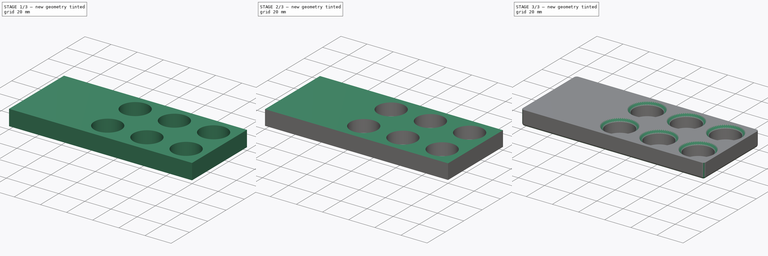
[diagram: build sequence overview — one tinted view per stage of 3, left to right]
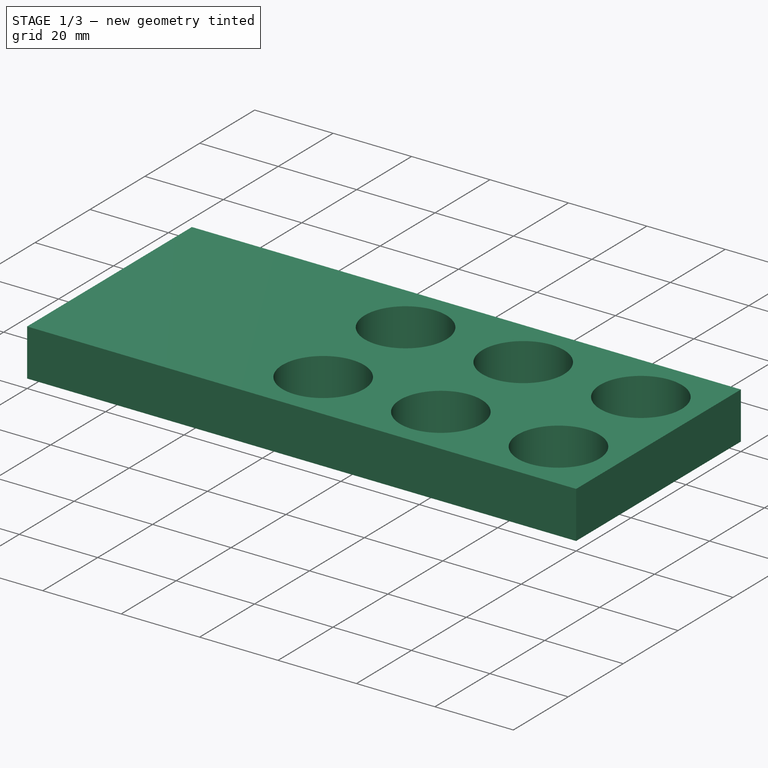
[diagram: stage 1 of 3 — iso view after this stage's code; geometry added in this stage tinted green]
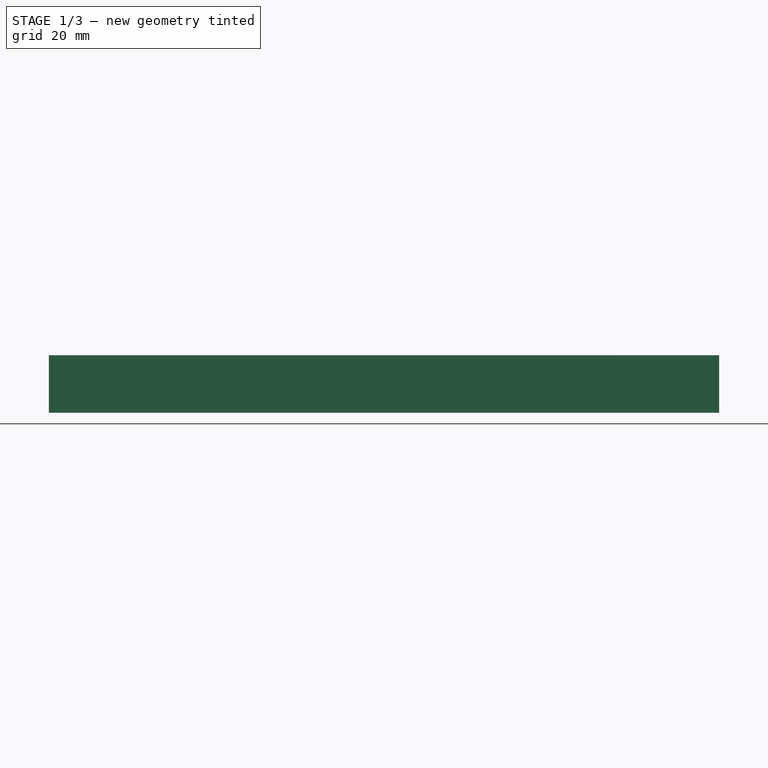
[diagram: stage 1 of 3 — front view after this stage's code; geometry added in this stage tinted green]
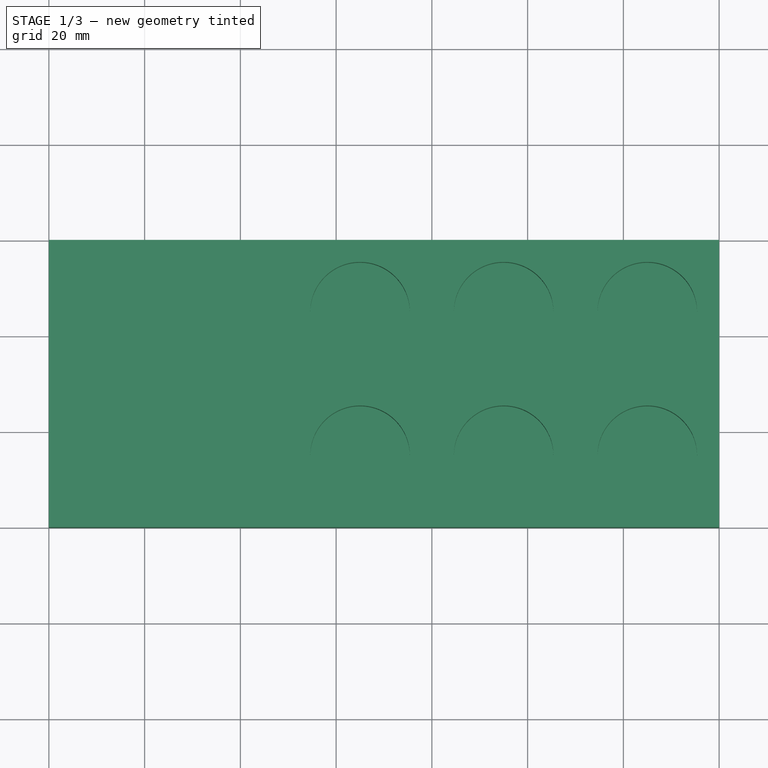
[diagram: stage 1 of 3 — top view after this stage's code; geometry added in this stage tinted green]
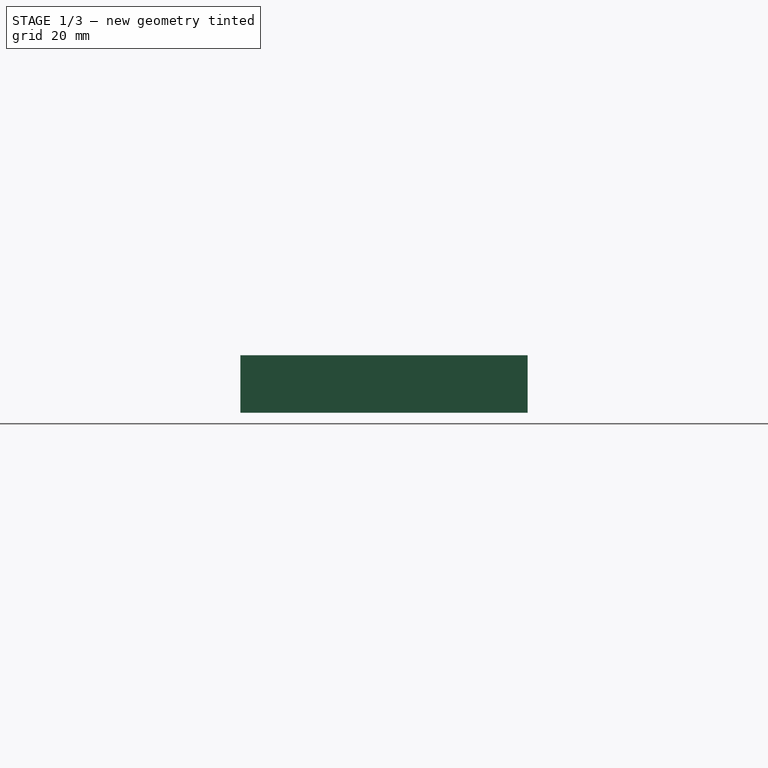
[diagram: stage 1 of 3 — right view after this stage's code; geometry added in this stage tinted green]
FCSTD DOCUMENT  (FreeCAD 0.17R12018 (Git))
Label: HerringBone6shooterTOP
License: All rights reserved
LicenseURL: http://en.wikipedia.org/wiki/All_rights_reserved
objects: PartDesign::Pocket×3, Sketcher::SketchObject×2, PartDesign::AdditiveBox×1, PartDesign::Fillet×1, PartDesign::Chamfer×1, PartDesign::Body×1
note: 13 computed .brp shape members not serialized (recipe doc carries the construction recipe); baked Part::Feature solids carry a one-line shape summary decoded from their .brp

FEATURE [PartDesign::AdditiveBox] Box
  AttacherType = Attacher::AttachEngine3D
  Height = 12
  Length = 140
  Width = 60
FEATURE [Sketcher::SketchObject] Sketch
  ExternalGeometry = -> [Box]
  MapMode = 5
  Placement = pos=(0,0,12) rot=(0,0,1;0rad)
  Support = -> [Box]
  sketch-geometry (15):
    g0: LineSegment [constr] StartX=50 StartY=60 StartZ=0 EndX=50 EndY=0 EndZ=0
    g1: LineSegment [constr] StartX=50 StartY=30 StartZ=0 EndX=140 EndY=30 EndZ=0
    g2: LineSegment [constr] StartX=80 StartY=60 StartZ=0 EndX=80 EndY=0 EndZ=0
    g3: LineSegment [constr] StartX=110 StartY=60 StartZ=0 EndX=110 EndY=0 EndZ=0
    g4: Circle CenterX=65 CenterY=45 CenterZ=0 NormalX=0 NormalY=0 NormalZ=1 Radius=10.4
    g5: Circle CenterX=95 CenterY=45 CenterZ=0 NormalX=0 NormalY=0 NormalZ=1 Radius=10.4
    g6: Circle CenterX=125 CenterY=45 CenterZ=0 NormalX=0 NormalY=0 NormalZ=1 Radius=10.4
    g7: Circle CenterX=125 CenterY=15 CenterZ=0 NormalX=0 NormalY=0 NormalZ=1 Radius=10.4
    g8: Circle CenterX=95 CenterY=15 CenterZ=0 NormalX=0 NormalY=0 NormalZ=1 Radius=10.4
    g9: Circle CenterX=65 CenterY=15 CenterZ=0 NormalX=0 NormalY=0 NormalZ=1 Radius=10.4
    g10: LineSegment [constr] StartX=50 StartY=15 StartZ=0 EndX=140 EndY=15 EndZ=0
    g11: LineSegment [constr] StartX=50 StartY=45 StartZ=0 EndX=140 EndY=45 EndZ=0
    g12: LineSegment [constr] StartX=65 StartY=60 StartZ=0 EndX=65 EndY=0 EndZ=0
    g13: LineSegment [constr] StartX=95 StartY=60 StartZ=0 EndX=95 EndY=0 EndZ=0
    g14: LineSegment [constr] StartX=125 StartY=60 StartZ=0 EndX=125 EndY=0 EndZ=0
  constraints (51):
    c: PointOnObject(g0,g-3)
    c: PointOnObject(g0,g-1)
    c: DistanceX(g-1,g0) = 50
    c: PointOnObject(g1,g0)
    c: PointOnObject(g1,g-4)
    c: Horizontal(g1)
    c: Symmetric(g0,g0,g1)
    c: PointOnObject(g2,g-3)
    c: Vertical(g2)
    c: PointOnObject(g3,g-3)
    c: Vertical(g3)
    c: DistanceX(g0,g2) = 30
    c: DistanceX(g2,g3) = 30
    c: Equal(g4,g5)
    c: Equal(g5,g6)
    c: Equal(g6,g7)
    c: Equal(g7,g8)
    c: Equal(g8,g9)
    c: Radius(g4) = 10.4
    c: PointOnObject(g10,g0)
    c: PointOnObject(g10,g-4)
    c: Horizontal(g10)
    c: PointOnObject(g11,g0)
    c: PointOnObject(g11,g-4)
    c: Horizontal(g11)
    c: PointOnObject(g12,g-3)
    c: PointOnObject(g12,g-1)
    c: Vertical(g12)
    c: PointOnObject(g13,g-3)
    c: PointOnObject(g13,g-1)
    c: Vertical(g13)
    c: PointOnObject(g14,g-3)
    c: PointOnObject(g14,g-1)
    c: Vertical(g14)
    c: Symmetric(g0,g2,g12)
    c: Symmetric(g0,g1,g10)
    c: Symmetric(g3,g2,g13)
    c: Symmetric(g-4,g3,g14)
    c: Symmetric(g0,g1,g11)
    c: PointOnObject(g4,g12)
    c: PointOnObject(g4,g11)
    c: PointOnObject(g5,g13)
    c: PointOnObject(g5,g11)
    c: PointOnObject(g6,g14)
    c: PointOnObject(g6,g11)
    c: PointOnObject(g9,g12)
    c: PointOnObject(g9,g10)
    c: PointOnObject(g8,g10)
    c: PointOnObject(g8,g13)
    c: PointOnObject(g7,g10)
    c: PointOnObject(g7,g14)
FEATURE [PartDesign::Pocket] Pocket
  BaseFeature = -> Box
  Length = 10
  Profile = -> Sketch
  Type = 0
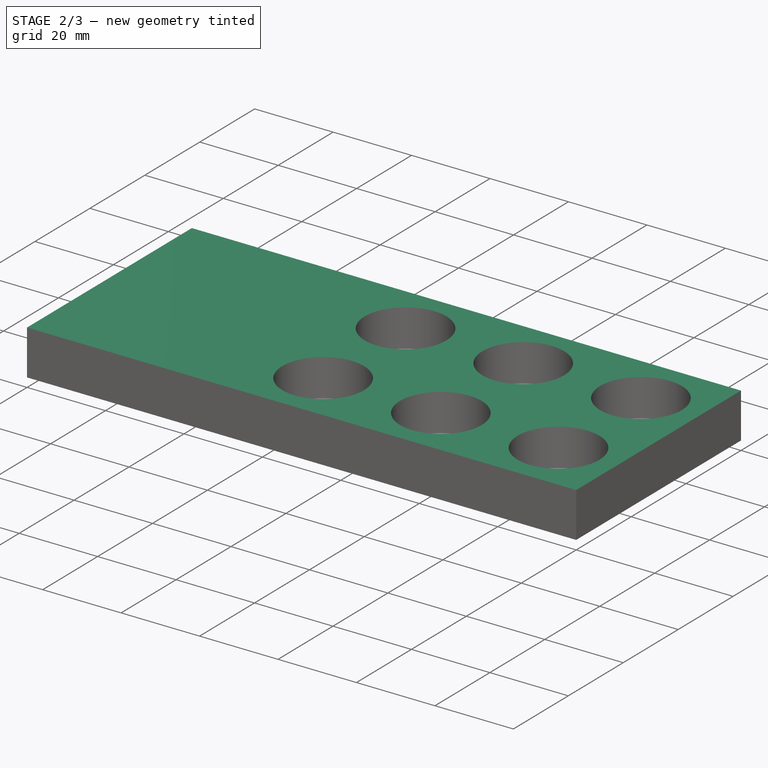
[diagram: stage 2 of 3 — iso view after this stage's code; geometry added in this stage tinted green]
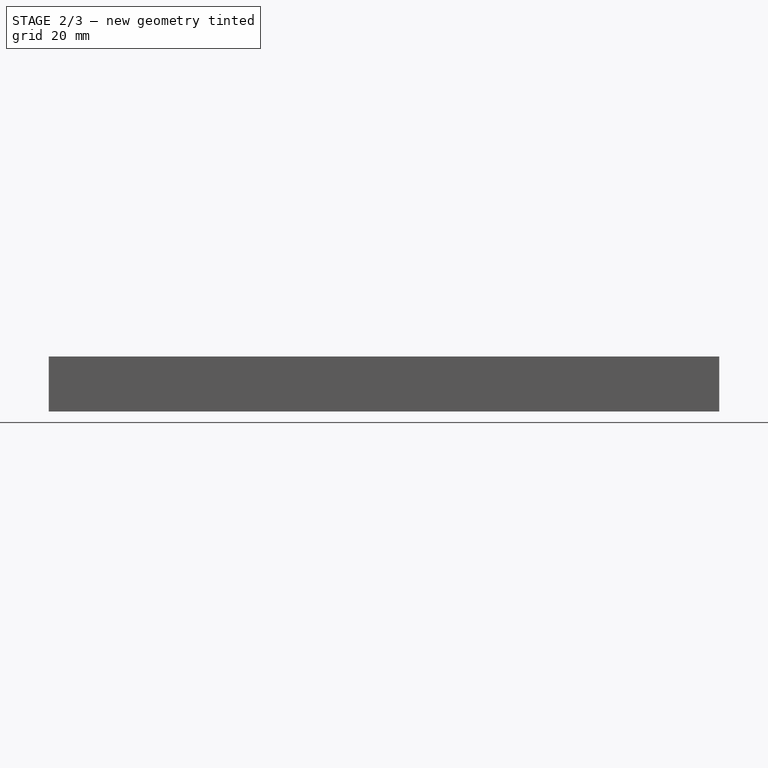
[diagram: stage 2 of 3 — front view after this stage's code; geometry added in this stage tinted green]
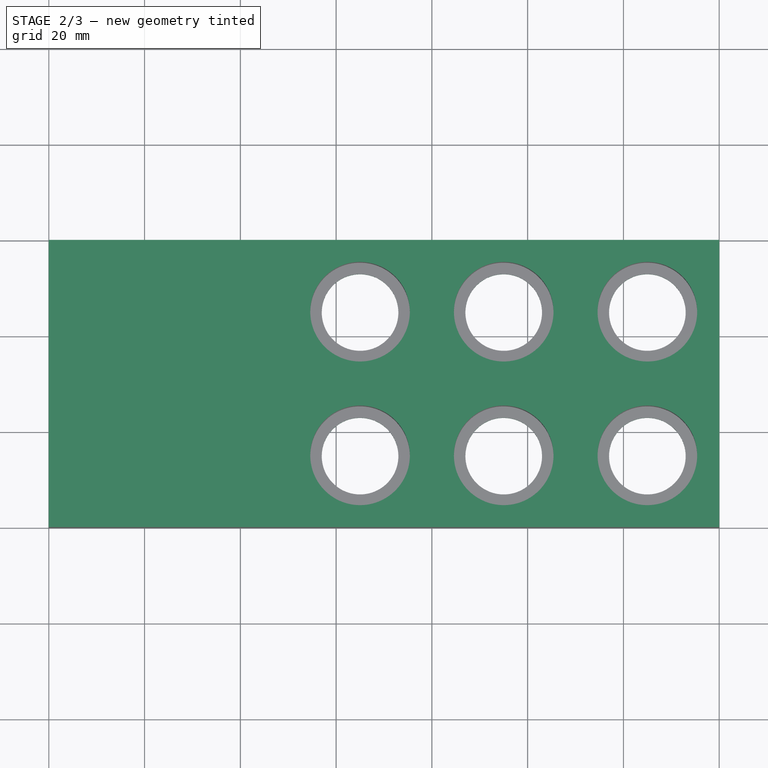
[diagram: stage 2 of 3 — top view after this stage's code; geometry added in this stage tinted green]
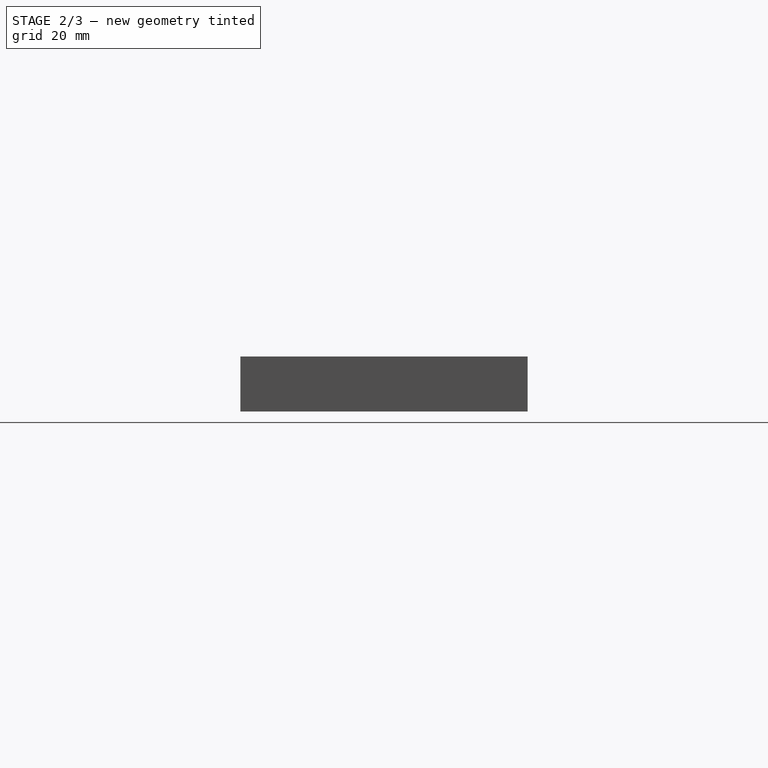
[diagram: stage 2 of 3 — right view after this stage's code; geometry added in this stage tinted green]
FEATURE [Sketcher::SketchObject] Sketch001
  ExternalGeometry = -> [Pocket]
  MapMode = 5
  Placement = pos=(0,0,12) rot=(0,0,1;0rad)
  Support = -> [Pocket]
  sketch-geometry (6):
    g0: Circle CenterX=65 CenterY=45 CenterZ=0 NormalX=0 NormalY=0 NormalZ=1 Radius=8
    g1: Circle CenterX=95 CenterY=45 CenterZ=0 NormalX=0 NormalY=0 NormalZ=1 Radius=8
    g2: Circle CenterX=125 CenterY=45 CenterZ=0 NormalX=0 NormalY=0 NormalZ=1 Radius=8
    g3: Circle CenterX=125 CenterY=15 CenterZ=0 NormalX=0 NormalY=0 NormalZ=1 Radius=8
    g4: Circle CenterX=95 CenterY=15 CenterZ=0 NormalX=0 NormalY=0 NormalZ=1 Radius=8
    g5: Circle CenterX=65 CenterY=15 CenterZ=0 NormalX=0 NormalY=0 NormalZ=1 Radius=8
  constraints (12):
    c: Coincident(g0,g-3)
    c: Coincident(g1,g-4)
    c: Coincident(g2,g-5)
    c: Coincident(g3,g-6)
    c: Coincident(g4,g-7)
    c: Coincident(g5,g-8)
    c: Equal(g0,g1)
    c: Equal(g1,g2)
    c: Equal(g2,g3)
    c: Equal(g3,g4)
    c: Equal(g4,g5)
    c: Radius(g2) = 8
FEATURE [PartDesign::Pocket] Pocket001
  BaseFeature = -> Pocket
  Length = 5
  Profile = -> Sketch001
  Type = 1
FEATURE [PartDesign::Pocket] Pocket002
  BaseFeature = -> Pocket001
  Length = 0.5
  Profile = -> Pocket001 [Face3]
  Type = 0
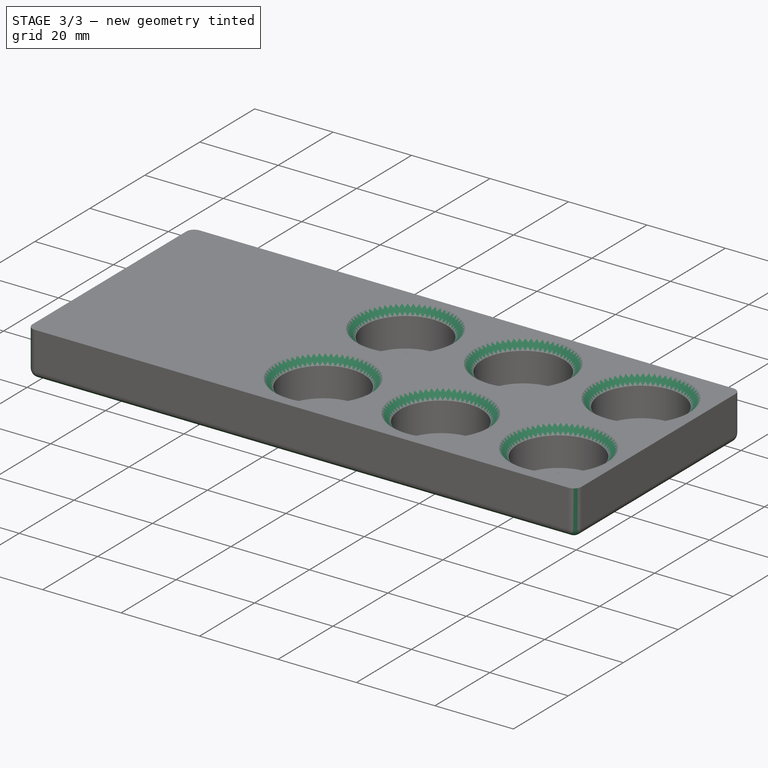
[diagram: stage 3 of 3 — iso view after this stage's code; geometry added in this stage tinted green]
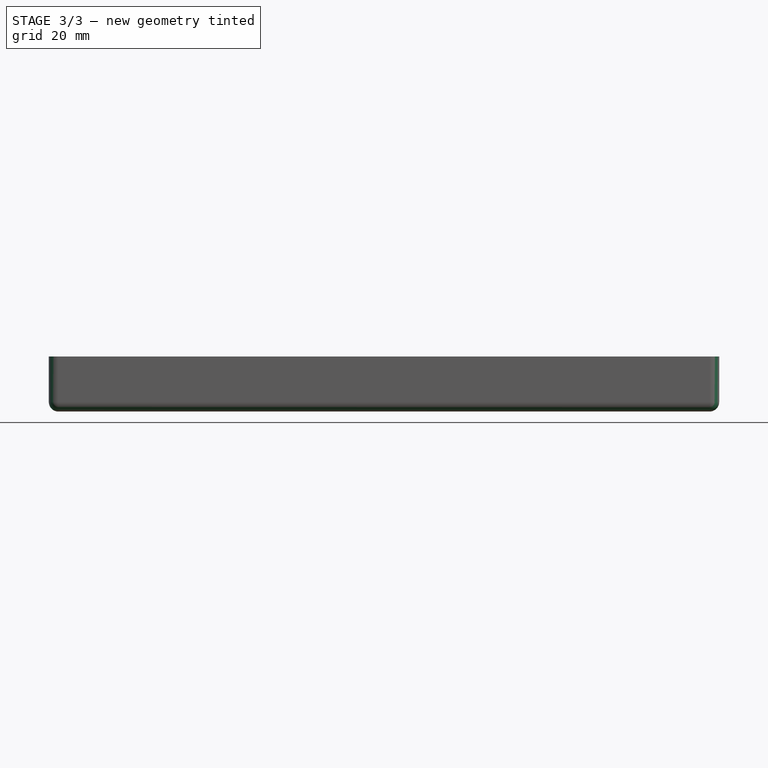
[diagram: stage 3 of 3 — front view after this stage's code; geometry added in this stage tinted green]
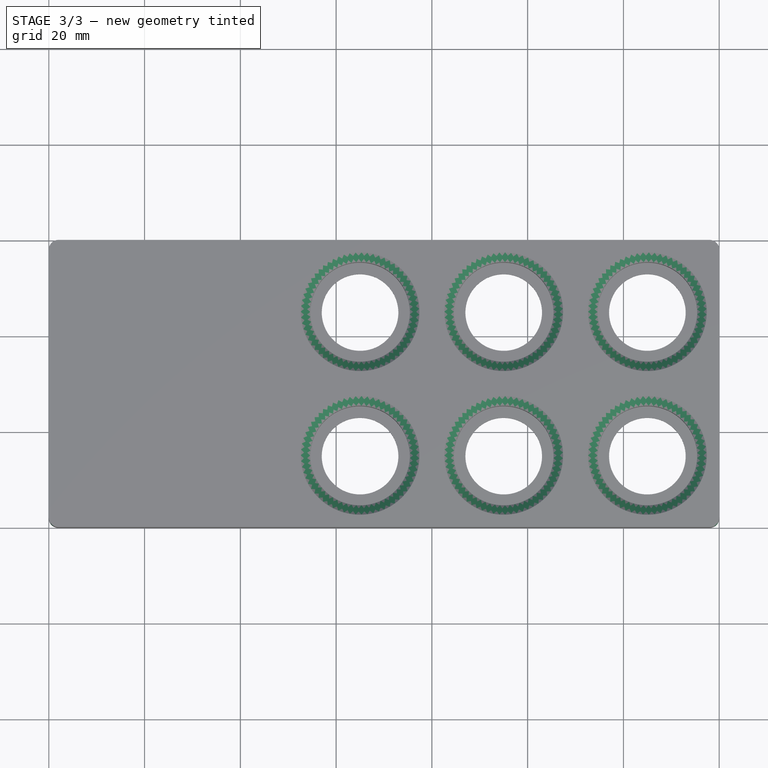
[diagram: stage 3 of 3 — top view after this stage's code; geometry added in this stage tinted green]
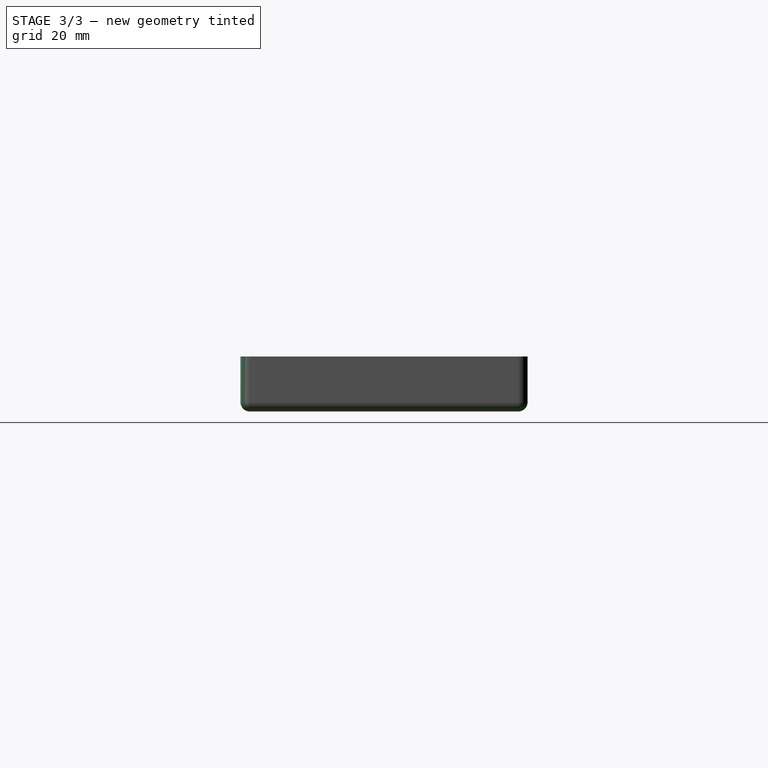
[diagram: stage 3 of 3 — right view after this stage's code; geometry added in this stage tinted green]
FEATURE [PartDesign::Fillet] Fillet
  Base = -> Pocket002 [Edge7,Edge4,Edge17,Edge18,Edge1,Edge3,Edge16,Edge5]
  BaseFeature = -> Pocket002
  Radius = 2
FEATURE [PartDesign::Chamfer] Chamfer
  Base = -> Fillet [Edge17,Edge16,Edge14,Edge15,Edge13,Edge12]
  BaseFeature = -> Fillet
  Size = 2
FEATURE [PartDesign::Body] Body
  Group = -> [Box,Sketch,Pocket,Sketch001,Pocket001,Pocket002,Fillet,Chamfer]
  Origin = -> Origin
  Tip = -> Chamfer
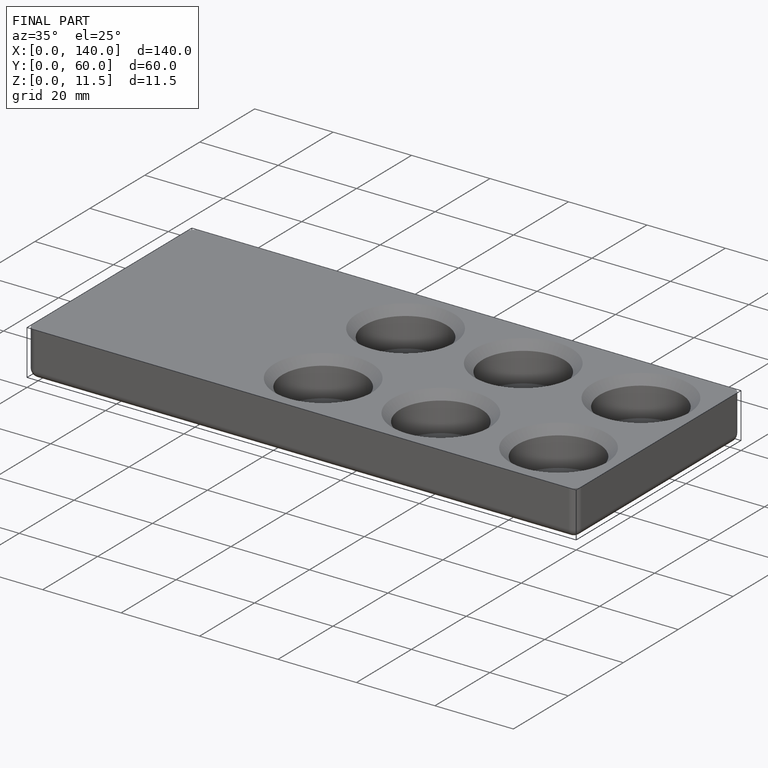
[diagram: finished part — iso view with bounding-box wireframe]
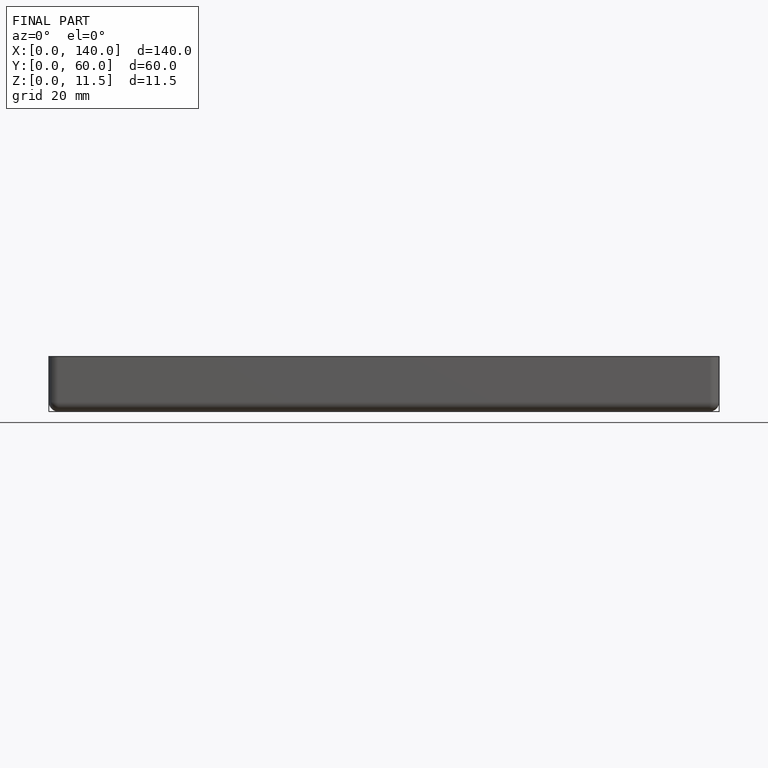
[diagram: finished part — front view with bounding-box wireframe]
